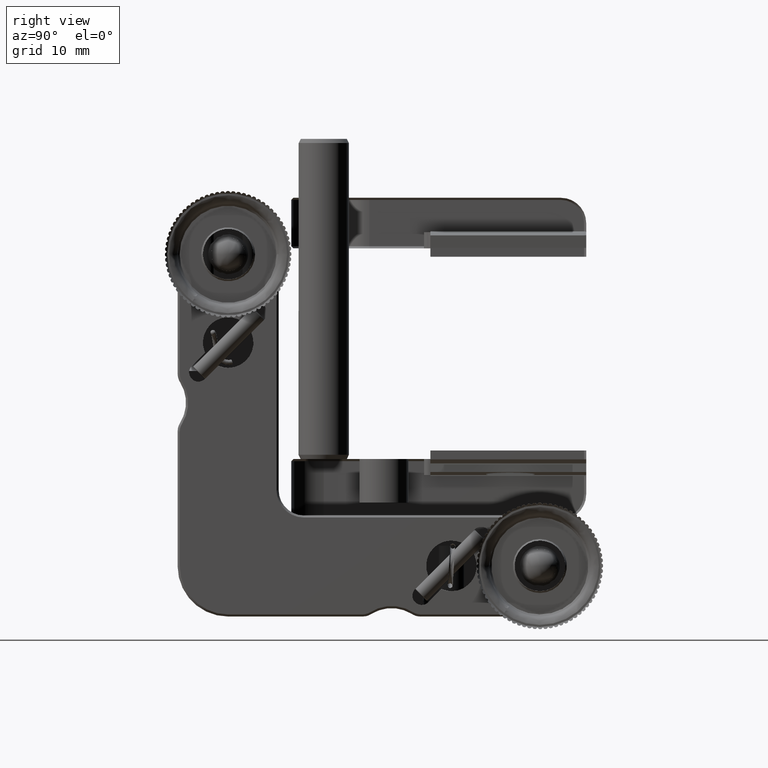
[diagram: clean part render]
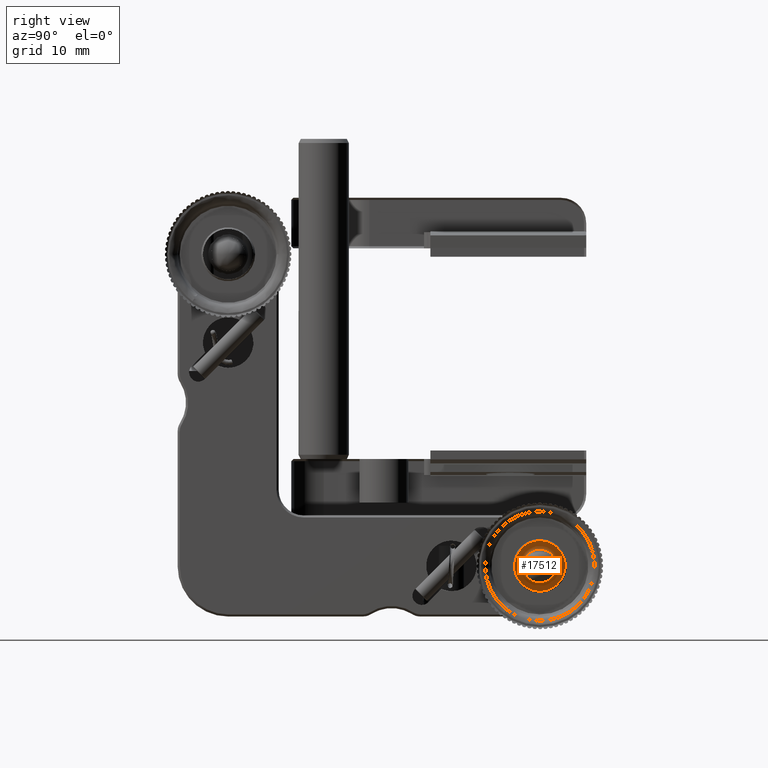
[diagram: same view with one face highlighted and labeled with its STEP entity id]
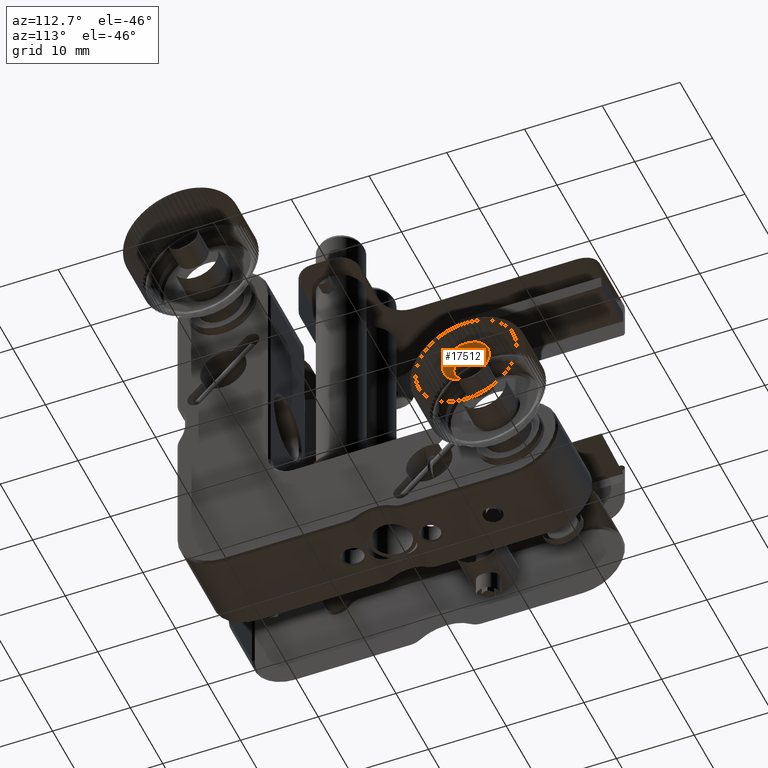
[diagram: same view with one face highlighted and labeled with its STEP entity id]
A machine part, right view. The second image highlights one B-rep face of the part: STEP entity #17512.
A second angle (auxiliary view) of the same face is appended — the face is thin or edge-on in the first view.
In plain terms, the highlighted conical surface has half-angle 45 deg.
Its self-contained STEP definition (entity closure, byte-faithful):
#1241 = AXIS2_PLACEMENT_3D ( 'NONE', #14287, #24020, #6975 ) ;
#2061 = CONICAL_SURFACE ( 'NONE', #10860, 2.999999999990905941, 0.7853981634241797849 ) ;
#3698 = ORIENTED_EDGE ( 'NONE', *, *, #28878, .F. ) ;
#4188 = EDGE_LOOP ( 'NONE', ( #14399 ) ) ;
#4359 = CIRCLE ( 'NONE', #1241, 2.999999999990905941 ) ;
#4557 = DIRECTION ( 'NONE',  ( 0.000000000000000000, 0.6055163117869841738, 0.7958328946204019649 ) ) ;
#4918 = VERTEX_POINT ( 'NONE', #22916 ) ;
#6975 = DIRECTION ( 'NONE',  ( 0.000000000000000000, 0.000000000000000000, -1.000000000000000000 ) ) ;
#8077 = CIRCLE ( 'NONE', #19475, 1.999999999961091124 ) ;
#10860 = AXIS2_PLACEMENT_3D ( 'NONE', #13506, #16256, #21607 ) ;
#13506 = CARTESIAN_POINT ( 'NONE',  ( 9.573949119896951743, 5.563724036656140903, 30.50000000000001776 ) ) ;
#13674 = FACE_OUTER_BOUND ( 'NONE', #28663, .T. ) ;
#14287 = CARTESIAN_POINT ( 'NONE',  ( 9.573949119896949966, 5.563724036656140903, 30.50000000000001776 ) ) ;
#14399 = ORIENTED_EDGE ( 'NONE', *, *, #31676, .T. ) ;
#16256 = DIRECTION ( 'NONE',  ( 1.000000000000000000, -1.750672268567148543E-16, -2.300916675436409224E-16 ) ) ;
#16601 = VERTEX_POINT ( 'NONE', #23913 ) ;
#17512 = ADVANCED_FACE ( 'NONE', ( #13674, #26009 ), #2061, .T. ) ;
#19475 = AXIS2_PLACEMENT_3D ( 'NONE', #22399, #19802, #4557 ) ;
#19802 = DIRECTION ( 'NONE',  ( 1.000000000000000000, 1.160638425645732497E-16, -1.387778780781445676E-17 ) ) ;
#21607 = DIRECTION ( 'NONE',  ( 0.000000000000000000, 0.000000000000000000, -1.000000000000000000 ) ) ;
#22399 = CARTESIAN_POINT ( 'NONE',  ( 8.573949119920598605, 5.563724036656140903, 30.50000000000001776 ) ) ;
#22916 = CARTESIAN_POINT ( 'NONE',  ( 8.573949119920598605, 6.774756660206548986, 32.09166578920985557 ) ) ;
#23913 = CARTESIAN_POINT ( 'NONE',  ( 9.573949119896949966, 5.563724036656140903, 27.50000000000910916 ) ) ;
#24020 = DIRECTION ( 'NONE',  ( 1.000000000000000000, -1.750672268567148543E-16, -2.300916675436409224E-16 ) ) ;
#26009 = FACE_BOUND ( 'NONE', #4188, .T. ) ;
#28663 = EDGE_LOOP ( 'NONE', ( #3698 ) ) ;
#28878 = EDGE_CURVE ( 'NONE', #16601, #16601, #4359, .T. ) ;
#31676 = EDGE_CURVE ( 'NONE', #4918, #4918, #8077, .T. ) ;